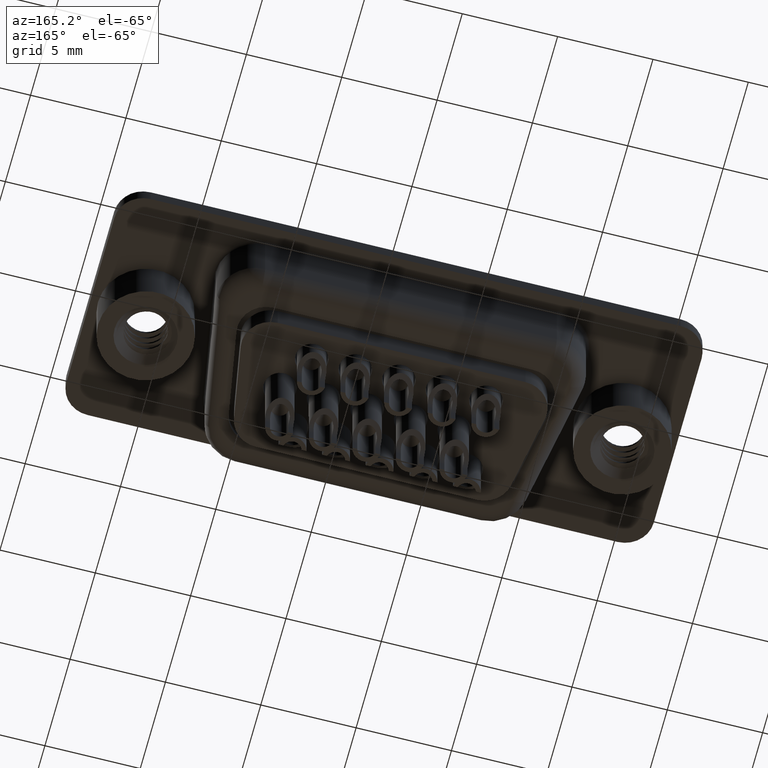
[diagram: clean part render]
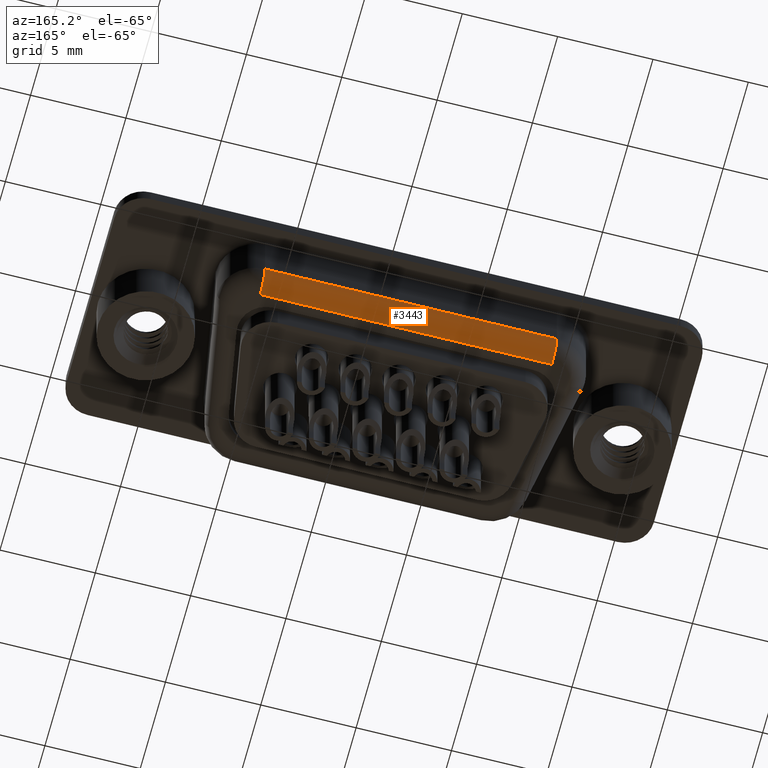
[diagram: same view with one face highlighted and labeled with its STEP entity id]
A machine part, auxiliary view. The second image highlights one B-rep face of the part: STEP entity #3443.
In plain terms, the highlighted cylindrical surface (edge-blend (fillet) strip) has radius 1 mm, axis along (1, 0, 0).
Its self-contained STEP definition (entity closure, byte-faithful):
#391 = ORIENTED_EDGE ( 'NONE', *, *, #14701, .F. ) ;
#1117 = DIRECTION ( 'NONE',  ( 0.0000000000000000000, 0.0000000000000000000, -1.000000000000000000 ) ) ;
#1527 = CARTESIAN_POINT ( 'NONE',  ( 20.15000000000000924, 5.350000000000005862, -3.499999999999999556 ) ) ;
#1627 = VECTOR ( 'NONE', #10721, 1000.000000000000000 ) ;
#1994 = EDGE_CURVE ( 'NONE', #8994, #18477, #6293, .T. ) ;
#2782 = LINE ( 'NONE', #8535, #17325 ) ;
#2795 = ORIENTED_EDGE ( 'NONE', *, *, #16348, .T. ) ;
#2908 = CIRCLE ( 'NONE', #19167, 1.000000000000000000 ) ;
#2956 = CARTESIAN_POINT ( 'NONE',  ( 4.850000000000006750, 4.350000000000005862, -3.499999999999999556 ) ) ;
#3242 = AXIS2_PLACEMENT_3D ( 'NONE', #15791, #3844, #1117 ) ;
#3443 = ADVANCED_FACE ( 'NONE', ( #7157 ), #17466, .T. ) ;
#3844 = DIRECTION ( 'NONE',  ( 1.000000000000000000, 0.0000000000000000000, 0.0000000000000000000 ) ) ;
#3894 = CIRCLE ( 'NONE', #18296, 1.000000000000000000 ) ;
#3898 = ORIENTED_EDGE ( 'NONE', *, *, #15856, .F. ) ;
#5006 = EDGE_LOOP ( 'NONE', ( #2795, #391, #3898, #13159 ) ) ;
#5120 = CARTESIAN_POINT ( 'NONE',  ( 4.850000000000006750, 4.350000000000005862, -4.500000000000000000 ) ) ;
#6131 = CARTESIAN_POINT ( 'NONE',  ( 20.15000000000000924, 4.350000000000005862, -3.499999999999999556 ) ) ;
#6293 = LINE ( 'NONE', #1527, #1627 ) ;
#7157 = FACE_OUTER_BOUND ( 'NONE', #5006, .T. ) ;
#8535 = CARTESIAN_POINT ( 'NONE',  ( 6.031390770746678953, 4.350000000000005862, -4.500000000000000000 ) ) ;
#8994 = VERTEX_POINT ( 'NONE', #10754 ) ;
#10721 = DIRECTION ( 'NONE',  ( -1.000000000000000000, -0.0000000000000000000, -0.0000000000000000000 ) ) ;
#10754 = CARTESIAN_POINT ( 'NONE',  ( 20.15000000000000924, 5.350000000000005862, -3.499999999999999556 ) ) ;
#10851 = CARTESIAN_POINT ( 'NONE',  ( 20.15000000000000924, 4.350000000000005862, -4.500000000000000000 ) ) ;
#11582 = DIRECTION ( 'NONE',  ( 1.000000000000000000, 0.0000000000000000000, 0.0000000000000000000 ) ) ;
#12212 = VERTEX_POINT ( 'NONE', #10851 ) ;
#13159 = ORIENTED_EDGE ( 'NONE', *, *, #1994, .F. ) ;
#13673 = CARTESIAN_POINT ( 'NONE',  ( 4.850000000000006750, 5.350000000000005862, -3.499999999999999556 ) ) ;
#14701 = EDGE_CURVE ( 'NONE', #16602, #12212, #2782, .T. ) ;
#14897 = DIRECTION ( 'NONE',  ( 0.0000000000000000000, 0.0000000000000000000, 1.000000000000000000 ) ) ;
#15791 = CARTESIAN_POINT ( 'NONE',  ( 6.031390770746678953, 4.350000000000005862, -3.499999999999999556 ) ) ;
#15856 = EDGE_CURVE ( 'NONE', #18477, #16602, #3894, .T. ) ;
#16348 = EDGE_CURVE ( 'NONE', #8994, #12212, #2908, .T. ) ;
#16602 = VERTEX_POINT ( 'NONE', #5120 ) ;
#16830 = DIRECTION ( 'NONE',  ( -1.000000000000000000, 0.0000000000000000000, 0.0000000000000000000 ) ) ;
#17325 = VECTOR ( 'NONE', #11582, 1000.000000000000000 ) ;
#17466 = CYLINDRICAL_SURFACE ( 'NONE', #3242, 1.000000000000000000 ) ;
#17658 = DIRECTION ( 'NONE',  ( -1.000000000000000000, 0.0000000000000000000, 0.0000000000000000000 ) ) ;
#18014 = DIRECTION ( 'NONE',  ( 0.0000000000000000000, 0.0000000000000000000, 1.000000000000000000 ) ) ;
#18296 = AXIS2_PLACEMENT_3D ( 'NONE', #2956, #17658, #14897 ) ;
#18477 = VERTEX_POINT ( 'NONE', #13673 ) ;
#19167 = AXIS2_PLACEMENT_3D ( 'NONE', #6131, #16830, #18014 ) ;